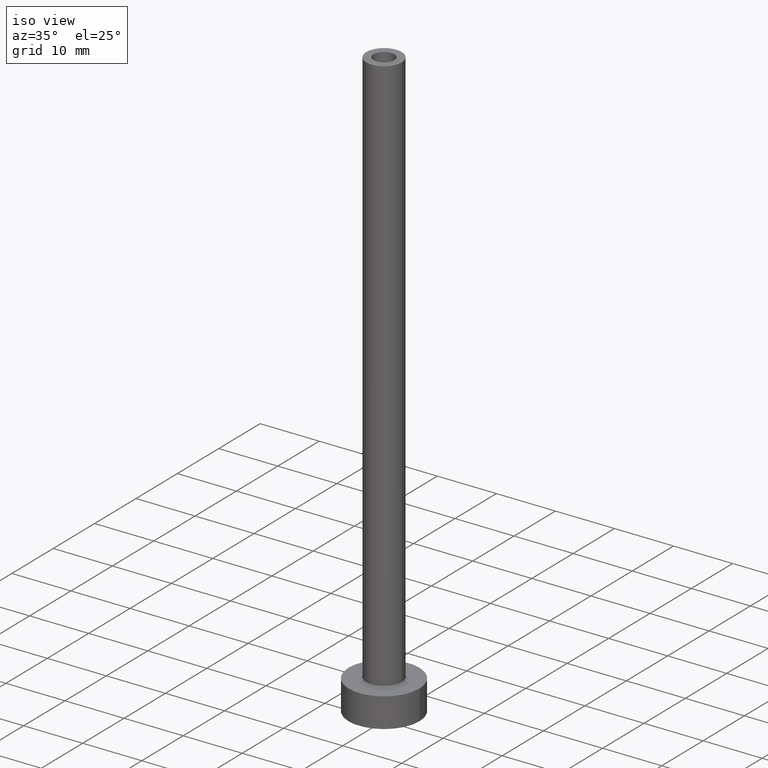
[diagram: clean part render]
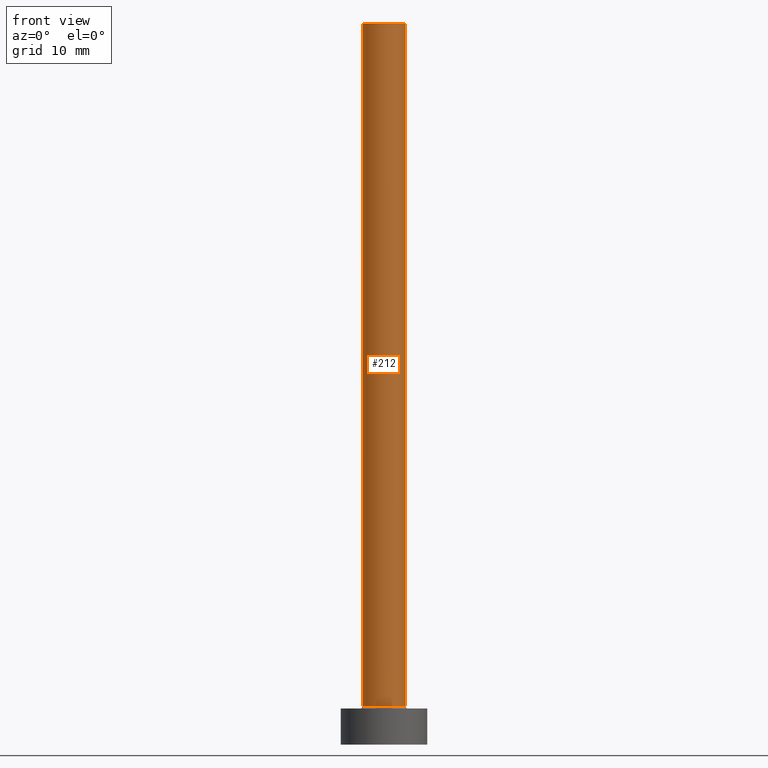
[diagram: tour spotlight — one face highlighted and labeled with its STEP entity id]
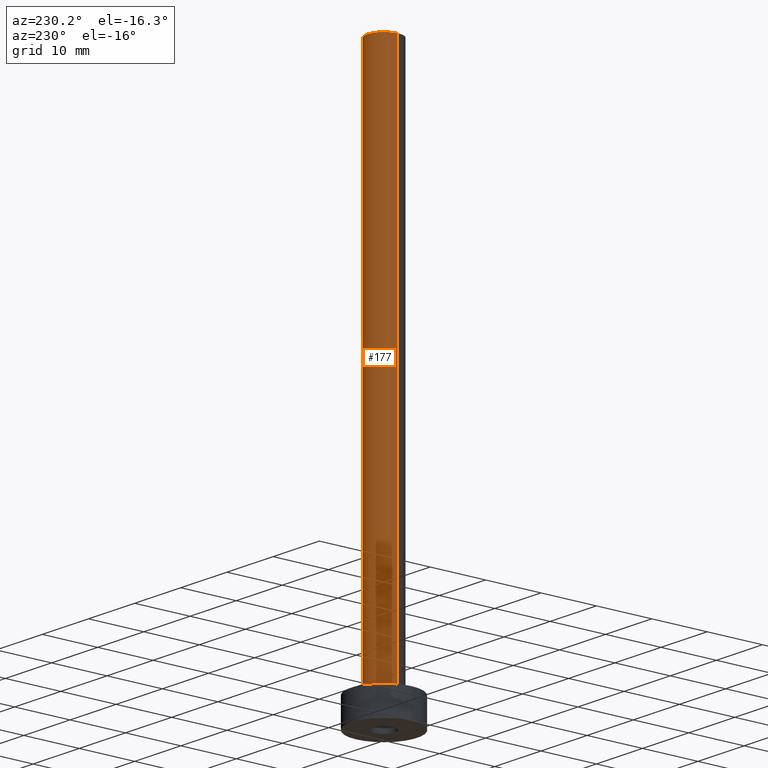
[diagram: tour spotlight — one face highlighted and labeled with its STEP entity id]
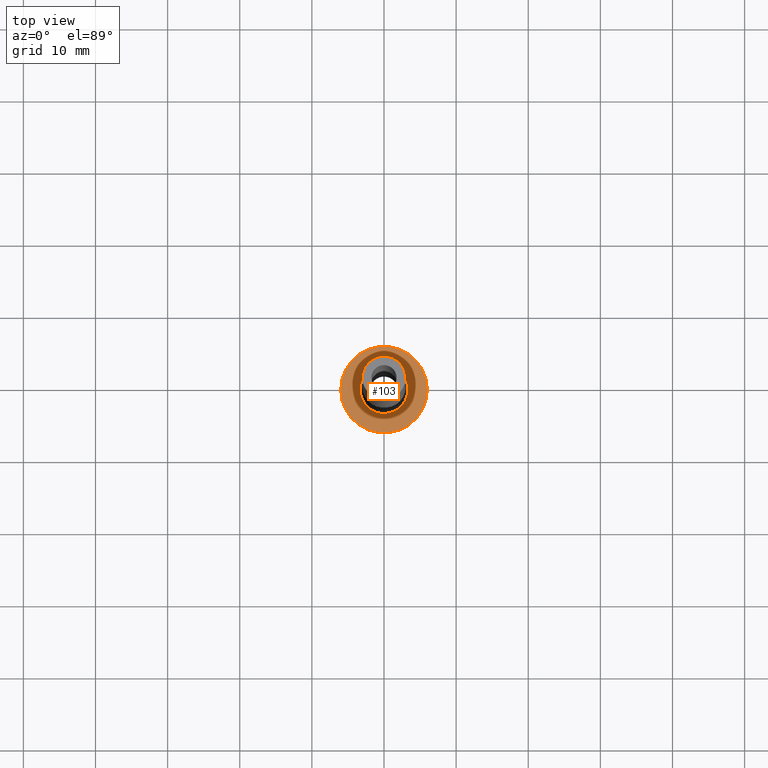
[diagram: tour spotlight — one face highlighted and labeled with its STEP entity id]
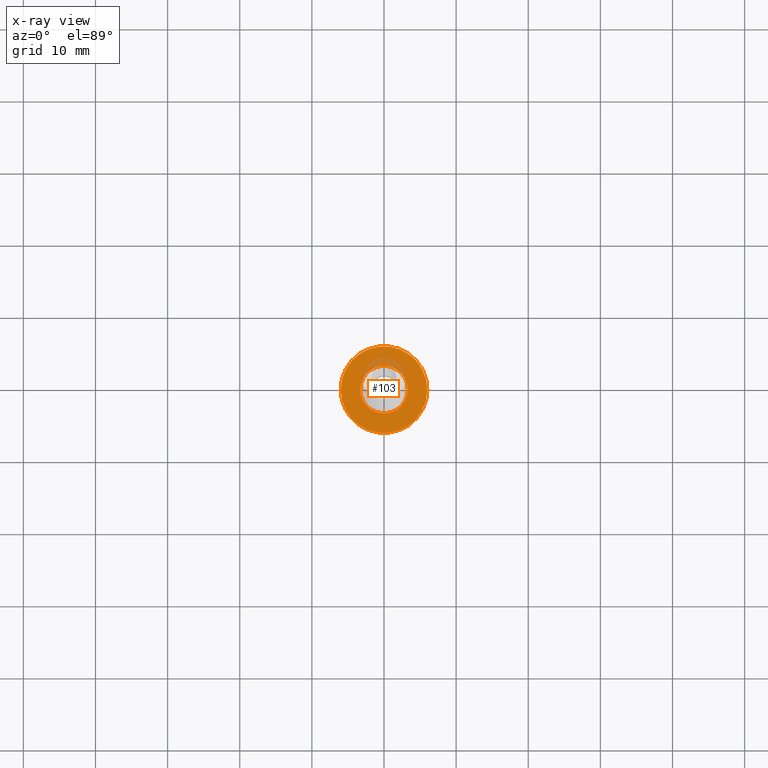
[diagram: x-ray of the same camera — body ghosted, this tour face saturated]
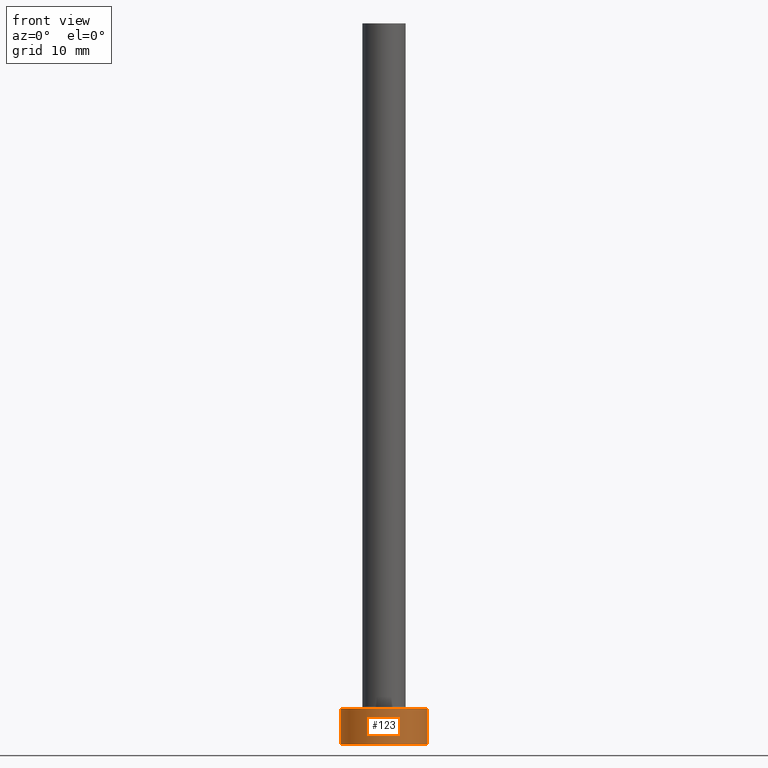
[diagram: tour spotlight — one face highlighted and labeled with its STEP entity id]
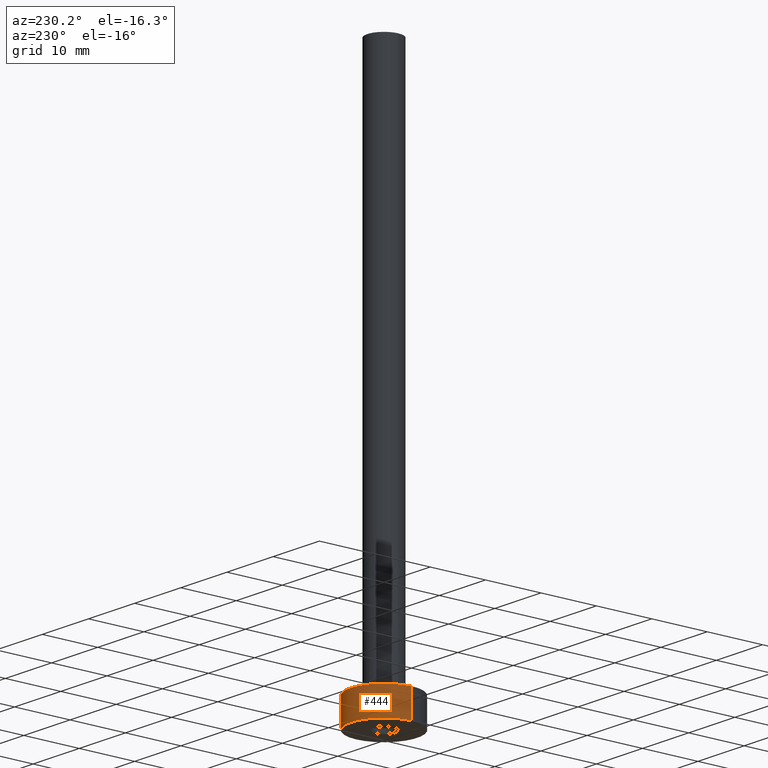
[diagram: tour spotlight — one face highlighted and labeled with its STEP entity id]
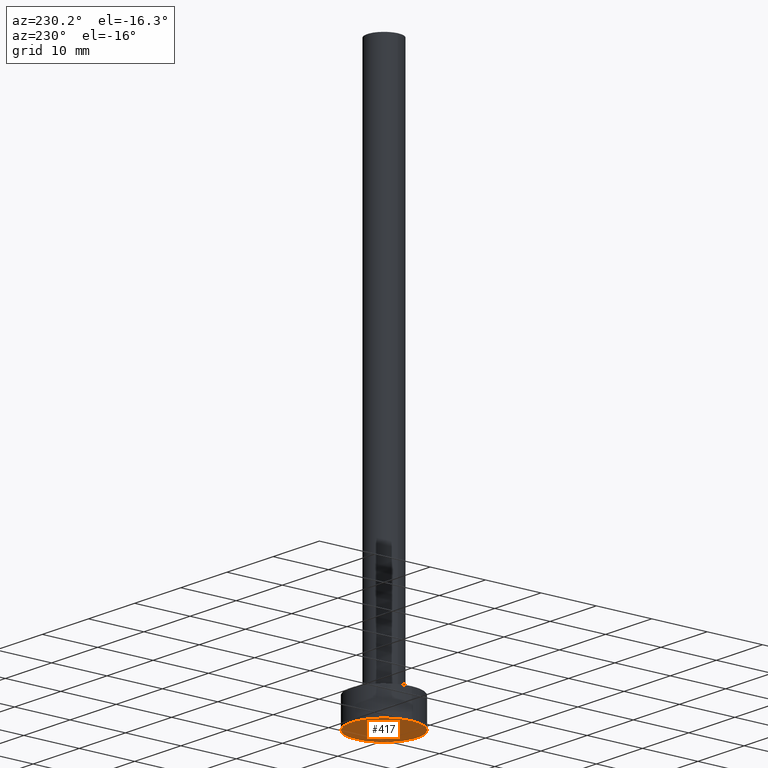
[diagram: tour spotlight — one face highlighted and labeled with its STEP entity id]
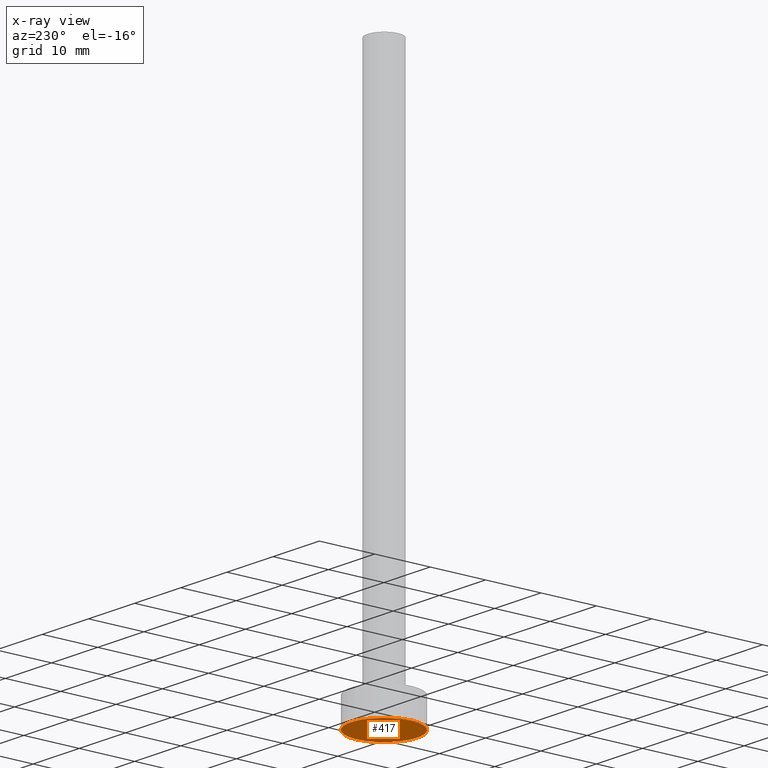
[diagram: x-ray of the same camera — body ghosted, this tour face saturated]
A machine part: a face-by-face anatomy tour. The part has 14 B-rep faces; the first image is the clean iso view, then the 6 largest visible faces are spotlighted one at a time (largest first), each with its STEP entity span.

Face 1 — front view, entity #212. In plain terms, the highlighted cylindrical surface (edge-blend (fillet) strip) has radius 3 mm, axis along (-0, -0, -1).
Definition (entity closure, byte-faithful):
#7 = DIRECTION ( 'NONE',  ( -0.000000000000000000, -0.000000000000000000, -1.000000000000000000 ) ) ;
#28 = AXIS2_PLACEMENT_3D ( 'NONE', #262, #195, #423 ) ;
#43 = DIRECTION ( 'NONE',  ( -1.000000000000000000, 0.000000000000000000, 0.000000000000000000 ) ) ;
#72 = DIRECTION ( 'NONE',  ( -0.000000000000000000, -0.000000000000000000, -1.000000000000000000 ) ) ;
#77 = DIRECTION ( 'NONE',  ( -0.000000000000000000, -0.000000000000000000, -1.000000000000000000 ) ) ;
#91 = VECTOR ( 'NONE', #72, 1000.000000000000000 ) ;
#117 = FACE_OUTER_BOUND ( 'NONE', #424, .T. ) ;
#119 = CARTESIAN_POINT ( 'NONE',  ( 3.000000000000000444, 3.673940397442060361E-16, 5.299999999999998934 ) ) ;
#130 = AXIS2_PLACEMENT_3D ( 'NONE', #460, #193, #395 ) ;
#138 = ORIENTED_EDGE ( 'NONE', *, *, #421, .F. ) ;
#168 = CARTESIAN_POINT ( 'NONE',  ( 3.000000000000000444, 3.673940397442060361E-16, 100.0000000000000000 ) ) ;
#189 = CARTESIAN_POINT ( 'NONE',  ( -3.000000000000000444, 0.000000000000000000, 100.0000000000000000 ) ) ;
#193 = DIRECTION ( 'NONE',  ( 0.000000000000000000, 0.000000000000000000, 1.000000000000000000 ) ) ;
#195 = DIRECTION ( 'NONE',  ( 0.000000000000000000, 0.000000000000000000, 1.000000000000000000 ) ) ;
#198 = CARTESIAN_POINT ( 'NONE',  ( 3.000000000000000444, 3.673940397442060361E-16, 100.0000000000000000 ) ) ;
#203 = ORIENTED_EDGE ( 'NONE', *, *, #220, .F. ) ;
#212 = ADVANCED_FACE ( 'NONE', ( #117 ), #259, .T. ) ;
#220 = EDGE_CURVE ( 'NONE', #379, #351, #354, .T. ) ;
#226 = CARTESIAN_POINT ( 'NONE',  ( -3.000000000000000444, 0.000000000000000000, 100.0000000000000000 ) ) ;
#254 = EDGE_CURVE ( 'NONE', #379, #419, #329, .T. ) ;
#259 = CYLINDRICAL_SURFACE ( 'NONE', #331, 3.000000000000000444 ) ;
#262 = CARTESIAN_POINT ( 'NONE',  ( 0.000000000000000000, 0.000000000000000000, 100.0000000000000000 ) ) ;
#264 = EDGE_CURVE ( 'NONE', #419, #362, #280, .T. ) ;
#271 = ORIENTED_EDGE ( 'NONE', *, *, #254, .T. ) ;
#280 = CIRCLE ( 'NONE', #130, 3.000000000000000444 ) ;
#288 = CARTESIAN_POINT ( 'NONE',  ( 0.000000000000000000, 0.000000000000000000, 100.0000000000000000 ) ) ;
#329 = LINE ( 'NONE', #189, #91 ) ;
#331 = AXIS2_PLACEMENT_3D ( 'NONE', #288, #77, #43 ) ;
#342 = LINE ( 'NONE', #168, #347 ) ;
#347 = VECTOR ( 'NONE', #7, 1000.000000000000000 ) ;
#351 = VERTEX_POINT ( 'NONE', #198 ) ;
#354 = CIRCLE ( 'NONE', #28, 3.000000000000000444 ) ;
#362 = VERTEX_POINT ( 'NONE', #119 ) ;
#374 = CARTESIAN_POINT ( 'NONE',  ( -3.000000000000000444, 0.000000000000000000, 5.299999999999998934 ) ) ;
#379 = VERTEX_POINT ( 'NONE', #226 ) ;
#395 = DIRECTION ( 'NONE',  ( 1.000000000000000000, 0.000000000000000000, 0.000000000000000000 ) ) ;
#419 = VERTEX_POINT ( 'NONE', #374 ) ;
#421 = EDGE_CURVE ( 'NONE', #351, #362, #342, .T. ) ;
#422 = ORIENTED_EDGE ( 'NONE', *, *, #264, .T. ) ;
#423 = DIRECTION ( 'NONE',  ( 1.000000000000000000, 0.000000000000000000, 0.000000000000000000 ) ) ;
#424 = EDGE_LOOP ( 'NONE', ( #138, #203, #271, #422 ) ) ;
#460 = CARTESIAN_POINT ( 'NONE',  ( 0.000000000000000000, 0.000000000000000000, 5.299999999999998934 ) ) ;

Face 2 — auxiliary view, entity #177. In plain terms, the highlighted cylindrical surface (edge-blend (fillet) strip) has radius 3 mm, axis along (-0, -0, -1).
Definition (entity closure, byte-faithful):
#7 = DIRECTION ( 'NONE',  ( -0.000000000000000000, -0.000000000000000000, -1.000000000000000000 ) ) ;
#59 = CIRCLE ( 'NONE', #287, 3.000000000000000444 ) ;
#62 = FACE_OUTER_BOUND ( 'NONE', #159, .T. ) ;
#66 = AXIS2_PLACEMENT_3D ( 'NONE', #371, #363, #336 ) ;
#72 = DIRECTION ( 'NONE',  ( -0.000000000000000000, -0.000000000000000000, -1.000000000000000000 ) ) ;
#91 = VECTOR ( 'NONE', #72, 1000.000000000000000 ) ;
#119 = CARTESIAN_POINT ( 'NONE',  ( 3.000000000000000444, 3.673940397442060361E-16, 5.299999999999998934 ) ) ;
#145 = DIRECTION ( 'NONE',  ( 1.000000000000000000, 0.000000000000000000, 0.000000000000000000 ) ) ;
#151 = CARTESIAN_POINT ( 'NONE',  ( 0.000000000000000000, 0.000000000000000000, 100.0000000000000000 ) ) ;
#159 = EDGE_LOOP ( 'NONE', ( #246, #407, #296, #184 ) ) ;
#168 = CARTESIAN_POINT ( 'NONE',  ( 3.000000000000000444, 3.673940397442060361E-16, 100.0000000000000000 ) ) ;
#177 = ADVANCED_FACE ( 'NONE', ( #62 ), #350, .T. ) ;
#178 = DIRECTION ( 'NONE',  ( -1.000000000000000000, 0.000000000000000000, 0.000000000000000000 ) ) ;
#184 = ORIENTED_EDGE ( 'NONE', *, *, #254, .F. ) ;
#189 = CARTESIAN_POINT ( 'NONE',  ( -3.000000000000000444, 0.000000000000000000, 100.0000000000000000 ) ) ;
#197 = AXIS2_PLACEMENT_3D ( 'NONE', #252, #283, #178 ) ;
#198 = CARTESIAN_POINT ( 'NONE',  ( 3.000000000000000444, 3.673940397442060361E-16, 100.0000000000000000 ) ) ;
#226 = CARTESIAN_POINT ( 'NONE',  ( -3.000000000000000444, 0.000000000000000000, 100.0000000000000000 ) ) ;
#246 = ORIENTED_EDGE ( 'NONE', *, *, #386, .F. ) ;
#252 = CARTESIAN_POINT ( 'NONE',  ( 0.000000000000000000, 0.000000000000000000, 100.0000000000000000 ) ) ;
#254 = EDGE_CURVE ( 'NONE', #379, #419, #329, .T. ) ;
#272 = CIRCLE ( 'NONE', #66, 3.000000000000000444 ) ;
#283 = DIRECTION ( 'NONE',  ( -0.000000000000000000, -0.000000000000000000, -1.000000000000000000 ) ) ;
#287 = AXIS2_PLACEMENT_3D ( 'NONE', #151, #293, #145 ) ;
#293 = DIRECTION ( 'NONE',  ( 0.000000000000000000, 0.000000000000000000, 1.000000000000000000 ) ) ;
#296 = ORIENTED_EDGE ( 'NONE', *, *, #316, .T. ) ;
#316 = EDGE_CURVE ( 'NONE', #362, #419, #272, .T. ) ;
#329 = LINE ( 'NONE', #189, #91 ) ;
#336 = DIRECTION ( 'NONE',  ( 1.000000000000000000, 0.000000000000000000, 0.000000000000000000 ) ) ;
#342 = LINE ( 'NONE', #168, #347 ) ;
#347 = VECTOR ( 'NONE', #7, 1000.000000000000000 ) ;
#350 = CYLINDRICAL_SURFACE ( 'NONE', #197, 3.000000000000000444 ) ;
#351 = VERTEX_POINT ( 'NONE', #198 ) ;
#362 = VERTEX_POINT ( 'NONE', #119 ) ;
#363 = DIRECTION ( 'NONE',  ( 0.000000000000000000, 0.000000000000000000, 1.000000000000000000 ) ) ;
#371 = CARTESIAN_POINT ( 'NONE',  ( 0.000000000000000000, 0.000000000000000000, 5.299999999999998934 ) ) ;
#374 = CARTESIAN_POINT ( 'NONE',  ( -3.000000000000000444, 0.000000000000000000, 5.299999999999998934 ) ) ;
#379 = VERTEX_POINT ( 'NONE', #226 ) ;
#386 = EDGE_CURVE ( 'NONE', #351, #379, #59, .T. ) ;
#407 = ORIENTED_EDGE ( 'NONE', *, *, #421, .T. ) ;
#419 = VERTEX_POINT ( 'NONE', #374 ) ;
#421 = EDGE_CURVE ( 'NONE', #351, #362, #342, .T. ) ;

Face 3 — top view, entity #103. An x-ray twin of the same camera follows (body ghosted, this face saturated) — the face is partly hidden behind the body. In plain terms, the highlighted planar face has unit normal (0, 0, 1).
Definition (entity closure, byte-faithful):
#2 = AXIS2_PLACEMENT_3D ( 'NONE', #15, #163, #232 ) ;
#4 = VERTEX_POINT ( 'NONE', #274 ) ;
#8 = DIRECTION ( 'NONE',  ( 0.000000000000000000, 0.000000000000000000, 1.000000000000000000 ) ) ;
#10 = CARTESIAN_POINT ( 'NONE',  ( 0.000000000000000000, 0.000000000000000000, 5.000000000000000000 ) ) ;
#15 = CARTESIAN_POINT ( 'NONE',  ( 0.000000000000000000, 0.000000000000000000, 5.000000000000000000 ) ) ;
#42 = AXIS2_PLACEMENT_3D ( 'NONE', #200, #8, #400 ) ;
#60 = AXIS2_PLACEMENT_3D ( 'NONE', #402, #368, #164 ) ;
#78 = VERTEX_POINT ( 'NONE', #443 ) ;
#88 = DIRECTION ( 'NONE',  ( 0.000000000000000000, 0.000000000000000000, 1.000000000000000000 ) ) ;
#93 = FACE_BOUND ( 'NONE', #357, .T. ) ;
#95 = ORIENTED_EDGE ( 'NONE', *, *, #324, .T. ) ;
#103 = ADVANCED_FACE ( 'NONE', ( #93, #158 ), #372, .T. ) ;
#106 = ORIENTED_EDGE ( 'NONE', *, *, #278, .T. ) ;
#113 = EDGE_CURVE ( 'NONE', #275, #4, #370, .T. ) ;
#116 = CARTESIAN_POINT ( 'NONE',  ( -3.300000000000000266, 4.041334437186266003E-16, 4.999999999999999112 ) ) ;
#131 = EDGE_LOOP ( 'NONE', ( #250, #95 ) ) ;
#137 = CIRCLE ( 'NONE', #405, 3.300000000000000266 ) ;
#158 = FACE_OUTER_BOUND ( 'NONE', #131, .T. ) ;
#163 = DIRECTION ( 'NONE',  ( -0.000000000000000000, -0.000000000000000000, -1.000000000000000000 ) ) ;
#164 = DIRECTION ( 'NONE',  ( 1.000000000000000000, 0.000000000000000000, 0.000000000000000000 ) ) ;
#200 = CARTESIAN_POINT ( 'NONE',  ( 0.000000000000000000, 0.000000000000000000, 5.000000000000000000 ) ) ;
#206 = DIRECTION ( 'NONE',  ( 1.000000000000000000, 0.000000000000000000, -0.000000000000000000 ) ) ;
#232 = DIRECTION ( 'NONE',  ( 1.000000000000000000, 0.000000000000000000, 0.000000000000000000 ) ) ;
#241 = DIRECTION ( 'NONE',  ( -0.000000000000000000, -0.000000000000000000, -1.000000000000000000 ) ) ;
#250 = ORIENTED_EDGE ( 'NONE', *, *, #113, .T. ) ;
#274 = CARTESIAN_POINT ( 'NONE',  ( 6.000000000000000888, 7.347880794884120722E-16, 5.000000000000000000 ) ) ;
#275 = VERTEX_POINT ( 'NONE', #327 ) ;
#278 = EDGE_CURVE ( 'NONE', #78, #369, #137, .T. ) ;
#313 = EDGE_CURVE ( 'NONE', #369, #78, #453, .T. ) ;
#324 = EDGE_CURVE ( 'NONE', #4, #275, #445, .T. ) ;
#327 = CARTESIAN_POINT ( 'NONE',  ( -6.000000000000000888, 0.000000000000000000, 5.000000000000000000 ) ) ;
#357 = EDGE_LOOP ( 'NONE', ( #106, #429 ) ) ;
#365 = CARTESIAN_POINT ( 'NONE',  ( 0.000000000000000000, 0.000000000000000000, 5.000000000000000000 ) ) ;
#367 = DIRECTION ( 'NONE',  ( 1.000000000000000000, 0.000000000000000000, 0.000000000000000000 ) ) ;
#368 = DIRECTION ( 'NONE',  ( 0.000000000000000000, 0.000000000000000000, 1.000000000000000000 ) ) ;
#369 = VERTEX_POINT ( 'NONE', #116 ) ;
#370 = CIRCLE ( 'NONE', #60, 6.000000000000000888 ) ;
#372 = PLANE ( 'NONE',  #380 ) ;
#380 = AXIS2_PLACEMENT_3D ( 'NONE', #365, #88, #206 ) ;
#400 = DIRECTION ( 'NONE',  ( 1.000000000000000000, 0.000000000000000000, 0.000000000000000000 ) ) ;
#402 = CARTESIAN_POINT ( 'NONE',  ( 0.000000000000000000, 0.000000000000000000, 5.000000000000000000 ) ) ;
#405 = AXIS2_PLACEMENT_3D ( 'NONE', #10, #241, #367 ) ;
#429 = ORIENTED_EDGE ( 'NONE', *, *, #313, .T. ) ;
#443 = CARTESIAN_POINT ( 'NONE',  ( 3.300000000000000266, 0.000000000000000000, 4.999999999999999112 ) ) ;
#445 = CIRCLE ( 'NONE', #42, 6.000000000000000888 ) ;
#453 = CIRCLE ( 'NONE', #2, 3.300000000000000266 ) ;

Face 4 — front view, entity #123. In plain terms, the highlighted cylindrical surface (partial cylindrical patch) has radius 6 mm, axis along (-0, -0, -1).
Definition (entity closure, byte-faithful):
#4 = VERTEX_POINT ( 'NONE', #274 ) ;
#20 = FACE_OUTER_BOUND ( 'NONE', #301, .T. ) ;
#53 = CARTESIAN_POINT ( 'NONE',  ( 0.000000000000000000, 0.000000000000000000, 5.000000000000000000 ) ) ;
#56 = DIRECTION ( 'NONE',  ( 0.000000000000000000, 0.000000000000000000, 1.000000000000000000 ) ) ;
#60 = AXIS2_PLACEMENT_3D ( 'NONE', #402, #368, #164 ) ;
#73 = ORIENTED_EDGE ( 'NONE', *, *, #450, .F. ) ;
#99 = EDGE_CURVE ( 'NONE', #432, #409, #115, .T. ) ;
#113 = EDGE_CURVE ( 'NONE', #275, #4, #370, .T. ) ;
#115 = CIRCLE ( 'NONE', #267, 6.000000000000000888 ) ;
#123 = ADVANCED_FACE ( 'NONE', ( #20 ), #201, .T. ) ;
#128 = DIRECTION ( 'NONE',  ( 1.000000000000000000, 0.000000000000000000, 0.000000000000000000 ) ) ;
#139 = DIRECTION ( 'NONE',  ( -0.000000000000000000, -0.000000000000000000, -1.000000000000000000 ) ) ;
#153 = ORIENTED_EDGE ( 'NONE', *, *, #113, .F. ) ;
#164 = DIRECTION ( 'NONE',  ( 1.000000000000000000, 0.000000000000000000, 0.000000000000000000 ) ) ;
#171 = DIRECTION ( 'NONE',  ( -1.000000000000000000, 0.000000000000000000, 0.000000000000000000 ) ) ;
#187 = VECTOR ( 'NONE', #323, 1000.000000000000000 ) ;
#199 = CARTESIAN_POINT ( 'NONE',  ( -6.000000000000000888, 0.000000000000000000, 5.000000000000000000 ) ) ;
#201 = CYLINDRICAL_SURFACE ( 'NONE', #413, 6.000000000000000888 ) ;
#267 = AXIS2_PLACEMENT_3D ( 'NONE', #375, #56, #128 ) ;
#273 = VECTOR ( 'NONE', #139, 1000.000000000000000 ) ;
#274 = CARTESIAN_POINT ( 'NONE',  ( 6.000000000000000888, 7.347880794884120722E-16, 5.000000000000000000 ) ) ;
#275 = VERTEX_POINT ( 'NONE', #327 ) ;
#279 = LINE ( 'NONE', #353, #273 ) ;
#301 = EDGE_LOOP ( 'NONE', ( #73, #153, #373, #348 ) ) ;
#303 = DIRECTION ( 'NONE',  ( -0.000000000000000000, -0.000000000000000000, -1.000000000000000000 ) ) ;
#309 = CARTESIAN_POINT ( 'NONE',  ( -6.000000000000000888, 0.000000000000000000, 0.000000000000000000 ) ) ;
#323 = DIRECTION ( 'NONE',  ( -0.000000000000000000, -0.000000000000000000, -1.000000000000000000 ) ) ;
#326 = LINE ( 'NONE', #199, #187 ) ;
#327 = CARTESIAN_POINT ( 'NONE',  ( -6.000000000000000888, 0.000000000000000000, 5.000000000000000000 ) ) ;
#348 = ORIENTED_EDGE ( 'NONE', *, *, #99, .T. ) ;
#353 = CARTESIAN_POINT ( 'NONE',  ( 6.000000000000000888, 7.347880794884120722E-16, 5.000000000000000000 ) ) ;
#359 = EDGE_CURVE ( 'NONE', #275, #432, #326, .T. ) ;
#368 = DIRECTION ( 'NONE',  ( 0.000000000000000000, 0.000000000000000000, 1.000000000000000000 ) ) ;
#370 = CIRCLE ( 'NONE', #60, 6.000000000000000888 ) ;
#373 = ORIENTED_EDGE ( 'NONE', *, *, #359, .T. ) ;
#375 = CARTESIAN_POINT ( 'NONE',  ( 0.000000000000000000, 0.000000000000000000, 0.000000000000000000 ) ) ;
#402 = CARTESIAN_POINT ( 'NONE',  ( 0.000000000000000000, 0.000000000000000000, 5.000000000000000000 ) ) ;
#409 = VERTEX_POINT ( 'NONE', #447 ) ;
#413 = AXIS2_PLACEMENT_3D ( 'NONE', #53, #303, #171 ) ;
#432 = VERTEX_POINT ( 'NONE', #309 ) ;
#447 = CARTESIAN_POINT ( 'NONE',  ( 6.000000000000000888, 7.347880794884120722E-16, 0.000000000000000000 ) ) ;
#450 = EDGE_CURVE ( 'NONE', #4, #409, #279, .T. ) ;

Face 5 — auxiliary view, entity #444. In plain terms, the highlighted cylindrical surface (partial cylindrical patch) has radius 6 mm, axis along (-0, -0, -1).
Definition (entity closure, byte-faithful):
#4 = VERTEX_POINT ( 'NONE', #274 ) ;
#8 = DIRECTION ( 'NONE',  ( 0.000000000000000000, 0.000000000000000000, 1.000000000000000000 ) ) ;
#27 = ORIENTED_EDGE ( 'NONE', *, *, #450, .T. ) ;
#29 = DIRECTION ( 'NONE',  ( 0.000000000000000000, 0.000000000000000000, 1.000000000000000000 ) ) ;
#42 = AXIS2_PLACEMENT_3D ( 'NONE', #200, #8, #400 ) ;
#63 = CYLINDRICAL_SURFACE ( 'NONE', #382, 6.000000000000000888 ) ;
#136 = CARTESIAN_POINT ( 'NONE',  ( 0.000000000000000000, 0.000000000000000000, 0.000000000000000000 ) ) ;
#139 = DIRECTION ( 'NONE',  ( -0.000000000000000000, -0.000000000000000000, -1.000000000000000000 ) ) ;
#148 = ORIENTED_EDGE ( 'NONE', *, *, #430, .T. ) ;
#181 = EDGE_LOOP ( 'NONE', ( #191, #27, #148, #205 ) ) ;
#182 = DIRECTION ( 'NONE',  ( -0.000000000000000000, -0.000000000000000000, -1.000000000000000000 ) ) ;
#187 = VECTOR ( 'NONE', #323, 1000.000000000000000 ) ;
#191 = ORIENTED_EDGE ( 'NONE', *, *, #324, .F. ) ;
#199 = CARTESIAN_POINT ( 'NONE',  ( -6.000000000000000888, 0.000000000000000000, 5.000000000000000000 ) ) ;
#200 = CARTESIAN_POINT ( 'NONE',  ( 0.000000000000000000, 0.000000000000000000, 5.000000000000000000 ) ) ;
#205 = ORIENTED_EDGE ( 'NONE', *, *, #359, .F. ) ;
#247 = DIRECTION ( 'NONE',  ( 1.000000000000000000, 0.000000000000000000, 0.000000000000000000 ) ) ;
#273 = VECTOR ( 'NONE', #139, 1000.000000000000000 ) ;
#274 = CARTESIAN_POINT ( 'NONE',  ( 6.000000000000000888, 7.347880794884120722E-16, 5.000000000000000000 ) ) ;
#275 = VERTEX_POINT ( 'NONE', #327 ) ;
#279 = LINE ( 'NONE', #353, #273 ) ;
#309 = CARTESIAN_POINT ( 'NONE',  ( -6.000000000000000888, 0.000000000000000000, 0.000000000000000000 ) ) ;
#311 = FACE_OUTER_BOUND ( 'NONE', #181, .T. ) ;
#323 = DIRECTION ( 'NONE',  ( -0.000000000000000000, -0.000000000000000000, -1.000000000000000000 ) ) ;
#324 = EDGE_CURVE ( 'NONE', #4, #275, #445, .T. ) ;
#326 = LINE ( 'NONE', #199, #187 ) ;
#327 = CARTESIAN_POINT ( 'NONE',  ( -6.000000000000000888, 0.000000000000000000, 5.000000000000000000 ) ) ;
#352 = DIRECTION ( 'NONE',  ( -1.000000000000000000, 0.000000000000000000, 0.000000000000000000 ) ) ;
#353 = CARTESIAN_POINT ( 'NONE',  ( 6.000000000000000888, 7.347880794884120722E-16, 5.000000000000000000 ) ) ;
#359 = EDGE_CURVE ( 'NONE', #275, #432, #326, .T. ) ;
#381 = CARTESIAN_POINT ( 'NONE',  ( 0.000000000000000000, 0.000000000000000000, 5.000000000000000000 ) ) ;
#382 = AXIS2_PLACEMENT_3D ( 'NONE', #381, #182, #352 ) ;
#400 = DIRECTION ( 'NONE',  ( 1.000000000000000000, 0.000000000000000000, 0.000000000000000000 ) ) ;
#409 = VERTEX_POINT ( 'NONE', #447 ) ;
#428 = AXIS2_PLACEMENT_3D ( 'NONE', #136, #29, #247 ) ;
#430 = EDGE_CURVE ( 'NONE', #409, #432, #434, .T. ) ;
#432 = VERTEX_POINT ( 'NONE', #309 ) ;
#434 = CIRCLE ( 'NONE', #428, 6.000000000000000888 ) ;
#444 = ADVANCED_FACE ( 'NONE', ( #311 ), #63, .T. ) ;
#445 = CIRCLE ( 'NONE', #42, 6.000000000000000888 ) ;
#447 = CARTESIAN_POINT ( 'NONE',  ( 6.000000000000000888, 7.347880794884120722E-16, 0.000000000000000000 ) ) ;
#450 = EDGE_CURVE ( 'NONE', #4, #409, #279, .T. ) ;

Face 6 — auxiliary view, entity #417. An x-ray twin of the same camera follows (body ghosted, this face saturated) — the face is partly hidden behind the body. In plain terms, the highlighted planar face has unit normal (0, 0, 1).
Definition (entity closure, byte-faithful):
#9 = VERTEX_POINT ( 'NONE', #439 ) ;
#17 = CARTESIAN_POINT ( 'NONE',  ( 0.000000000000000000, 0.000000000000000000, 0.000000000000000000 ) ) ;
#23 = ORIENTED_EDGE ( 'NONE', *, *, #294, .F. ) ;
#29 = DIRECTION ( 'NONE',  ( 0.000000000000000000, 0.000000000000000000, 1.000000000000000000 ) ) ;
#48 = PLANE ( 'NONE',  #79 ) ;
#49 = CARTESIAN_POINT ( 'NONE',  ( 0.000000000000000000, 0.000000000000000000, 0.000000000000000000 ) ) ;
#56 = DIRECTION ( 'NONE',  ( 0.000000000000000000, 0.000000000000000000, 1.000000000000000000 ) ) ;
#70 = CIRCLE ( 'NONE', #260, 1.899999999999999911 ) ;
#79 = AXIS2_PLACEMENT_3D ( 'NONE', #17, #167, #129 ) ;
#81 = CARTESIAN_POINT ( 'NONE',  ( 0.000000000000000000, 0.000000000000000000, 0.000000000000000000 ) ) ;
#99 = EDGE_CURVE ( 'NONE', #432, #409, #115, .T. ) ;
#110 = EDGE_CURVE ( 'NONE', #118, #9, #70, .T. ) ;
#115 = CIRCLE ( 'NONE', #267, 6.000000000000000888 ) ;
#118 = VERTEX_POINT ( 'NONE', #233 ) ;
#128 = DIRECTION ( 'NONE',  ( 1.000000000000000000, 0.000000000000000000, 0.000000000000000000 ) ) ;
#129 = DIRECTION ( 'NONE',  ( 1.000000000000000000, 0.000000000000000000, -0.000000000000000000 ) ) ;
#136 = CARTESIAN_POINT ( 'NONE',  ( 0.000000000000000000, 0.000000000000000000, 0.000000000000000000 ) ) ;
#140 = ORIENTED_EDGE ( 'NONE', *, *, #99, .F. ) ;
#167 = DIRECTION ( 'NONE',  ( 0.000000000000000000, 0.000000000000000000, 1.000000000000000000 ) ) ;
#190 = ORIENTED_EDGE ( 'NONE', *, *, #110, .F. ) ;
#204 = AXIS2_PLACEMENT_3D ( 'NONE', #49, #438, #297 ) ;
#217 = CIRCLE ( 'NONE', #204, 1.899999999999999911 ) ;
#233 = CARTESIAN_POINT ( 'NONE',  ( -1.899999999999999911, 0.000000000000000000, 0.000000000000000000 ) ) ;
#236 = FACE_OUTER_BOUND ( 'NONE', #322, .T. ) ;
#247 = DIRECTION ( 'NONE',  ( 1.000000000000000000, 0.000000000000000000, 0.000000000000000000 ) ) ;
#260 = AXIS2_PLACEMENT_3D ( 'NONE', #81, #298, #435 ) ;
#267 = AXIS2_PLACEMENT_3D ( 'NONE', #375, #56, #128 ) ;
#294 = EDGE_CURVE ( 'NONE', #9, #118, #217, .T. ) ;
#297 = DIRECTION ( 'NONE',  ( 1.000000000000000000, 0.000000000000000000, 0.000000000000000000 ) ) ;
#298 = DIRECTION ( 'NONE',  ( -0.000000000000000000, -0.000000000000000000, -1.000000000000000000 ) ) ;
#309 = CARTESIAN_POINT ( 'NONE',  ( -6.000000000000000888, 0.000000000000000000, 0.000000000000000000 ) ) ;
#322 = EDGE_LOOP ( 'NONE', ( #140, #440 ) ) ;
#355 = EDGE_LOOP ( 'NONE', ( #190, #23 ) ) ;
#366 = FACE_BOUND ( 'NONE', #355, .T. ) ;
#375 = CARTESIAN_POINT ( 'NONE',  ( 0.000000000000000000, 0.000000000000000000, 0.000000000000000000 ) ) ;
#409 = VERTEX_POINT ( 'NONE', #447 ) ;
#417 = ADVANCED_FACE ( 'NONE', ( #366, #236 ), #48, .F. ) ;
#428 = AXIS2_PLACEMENT_3D ( 'NONE', #136, #29, #247 ) ;
#430 = EDGE_CURVE ( 'NONE', #409, #432, #434, .T. ) ;
#432 = VERTEX_POINT ( 'NONE', #309 ) ;
#434 = CIRCLE ( 'NONE', #428, 6.000000000000000888 ) ;
#435 = DIRECTION ( 'NONE',  ( 1.000000000000000000, 0.000000000000000000, 0.000000000000000000 ) ) ;
#438 = DIRECTION ( 'NONE',  ( -0.000000000000000000, -0.000000000000000000, -1.000000000000000000 ) ) ;
#439 = CARTESIAN_POINT ( 'NONE',  ( 1.899999999999999911, 2.326828918379970872E-16, 0.000000000000000000 ) ) ;
#440 = ORIENTED_EDGE ( 'NONE', *, *, #430, .F. ) ;
#447 = CARTESIAN_POINT ( 'NONE',  ( 6.000000000000000888, 7.347880794884120722E-16, 0.000000000000000000 ) ) ;